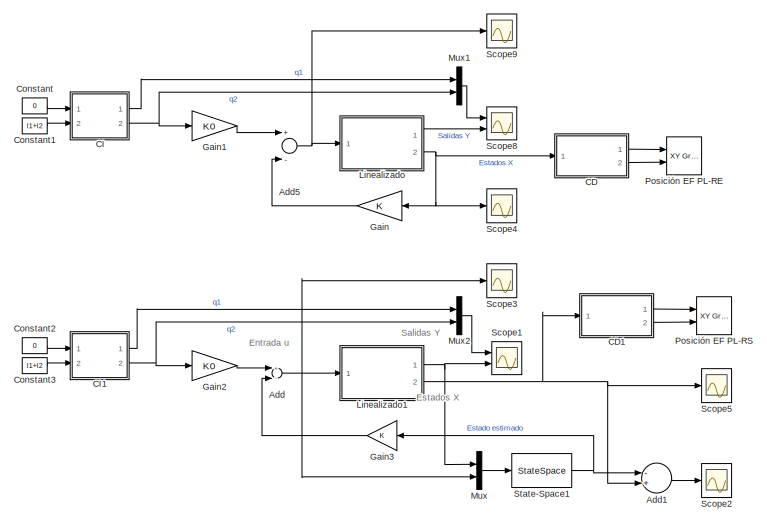
[diagram: root canvas - part 1/2, left side, full height]
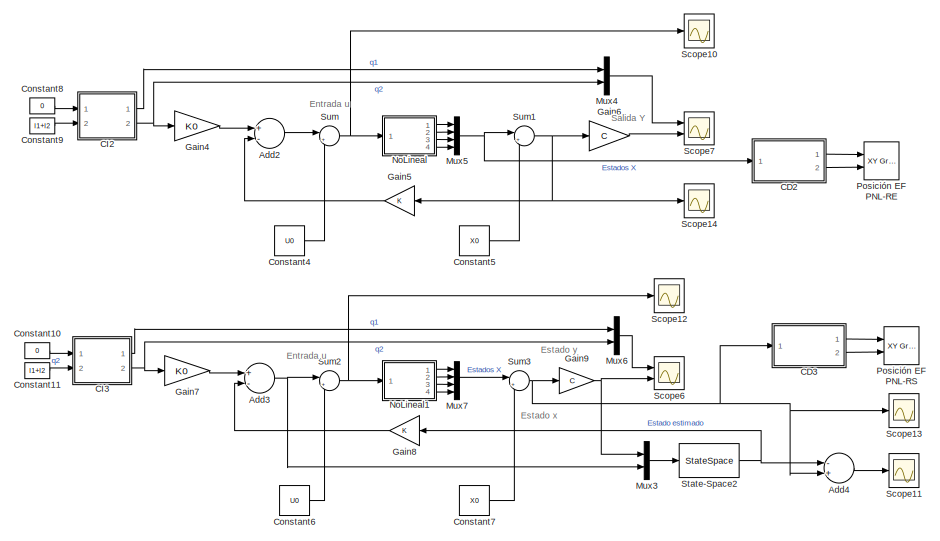
[diagram: root canvas - part 2/2, right side, full height]
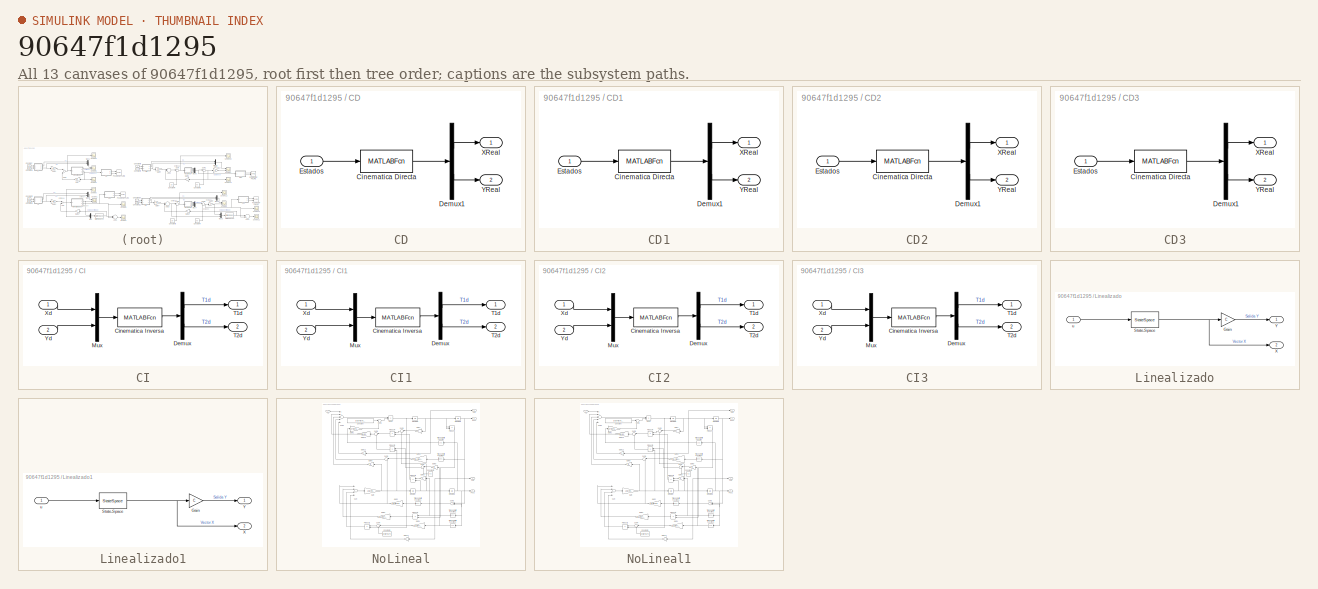
[diagram: thumbnail index - all 13 canvases of the model, root first then tree order]
MODEL slx_90647f1d1295
KIND model
CONFIG AbsTol = auto
CONFIG EnableMultiTasking = off
CONFIG FixedStep = 0.01
CONFIG MaxStep = auto
CONFIG MinStep = auto
CONFIG RelTol = 1e-3
CONFIG SampleTimeConstraint = Unconstrained
CONFIG Solver = ode4
CONFIG SolverName = ode4
CONFIG StartTime = 0.0
CONFIG StopTime = ts
BLOCK [Sum] Add
  InputSameDT = off
  Inputs = +-
  OutDataTypeStr = Inherit: Inherit via internal rule
  Ports = [2, 1]
  SaturateOnIntegerOverflow = off
BLOCK [Sum] Add1
  InputSameDT = off
  Inputs = -+
  OutDataTypeStr = Inherit: Inherit via internal rule
  Ports = [2, 1]
  SaturateOnIntegerOverflow = off
BLOCK [Sum] Add2
  InputSameDT = off
  Inputs = +-
  OutDataTypeStr = Inherit: Inherit via internal rule
  Ports = [2, 1]
  SaturateOnIntegerOverflow = off
BLOCK [Sum] Add3
  InputSameDT = off
  Inputs = +-
  OutDataTypeStr = Inherit: Inherit via internal rule
  Ports = [2, 1]
  SaturateOnIntegerOverflow = off
BLOCK [Sum] Add4
  InputSameDT = off
  Inputs = -+
  OutDataTypeStr = Inherit: Inherit via internal rule
  Ports = [2, 1]
  SaturateOnIntegerOverflow = off
BLOCK [Sum] Add5
  InputSameDT = off
  Inputs = +-
  OutDataTypeStr = Inherit: Inherit via internal rule
  Ports = [2, 1]
  SaturateOnIntegerOverflow = off
BLOCK [SubSystem] CD
  Ports = [1, 2]
  RequestExecContextInheritance = off
  TreatAsAtomicUnit = on
BLOCK [MATLABFcn] CD/Cinematica Directa
  MATLABFcn = CinematicaDirecta
  OutputDimensions = 2
  Ports = [1, 1]
BLOCK [Demux] CD/Demux1
  DisplayOption = bar
  Outputs = 2
  Ports = [1, 2]
BLOCK [Inport] CD/Estados
  IconDisplay = Port number
BLOCK [Outport] CD/XReal
  IconDisplay = Port number
  VectorParamsAs1DForOutWhenUnconnected = off
BLOCK [Outport] CD/YReal
  IconDisplay = Port number
  Port = 2
  VectorParamsAs1DForOutWhenUnconnected = off
BLOCK [SubSystem] CD1
  Ports = [1, 2]
  RequestExecContextInheritance = off
  TreatAsAtomicUnit = on
BLOCK [MATLABFcn] CD1/Cinematica Directa
  MATLABFcn = CinematicaDirecta
  OutputDimensions = 2
  Ports = [1, 1]
BLOCK [Demux] CD1/Demux1
  DisplayOption = bar
  Outputs = 2
  Ports = [1, 2]
BLOCK [Inport] CD1/Estados
  IconDisplay = Port number
BLOCK [Outport] CD1/XReal
  IconDisplay = Port number
  VectorParamsAs1DForOutWhenUnconnected = off
BLOCK [Outport] CD1/YReal
  IconDisplay = Port number
  Port = 2
  VectorParamsAs1DForOutWhenUnconnected = off
BLOCK [SubSystem] CD2
  Ports = [1, 2]
  RequestExecContextInheritance = off
  TreatAsAtomicUnit = on
BLOCK [MATLABFcn] CD2/Cinematica Directa
  MATLABFcn = CinematicaDirecta
  OutputDimensions = 2
  Ports = [1, 1]
BLOCK [Demux] CD2/Demux1
  DisplayOption = bar
  Outputs = 2
  Ports = [1, 2]
BLOCK [Inport] CD2/Estados
  IconDisplay = Port number
BLOCK [Outport] CD2/XReal
  IconDisplay = Port number
  VectorParamsAs1DForOutWhenUnconnected = off
BLOCK [Outport] CD2/YReal
  IconDisplay = Port number
  Port = 2
  VectorParamsAs1DForOutWhenUnconnected = off
BLOCK [SubSystem] CD3
  Ports = [1, 2]
  RequestExecContextInheritance = off
  TreatAsAtomicUnit = on
BLOCK [MATLABFcn] CD3/Cinematica Directa
  MATLABFcn = CinematicaDirecta
  OutputDimensions = 2
  Ports = [1, 1]
BLOCK [Demux] CD3/Demux1
  DisplayOption = bar
  Outputs = 2
  Ports = [1, 2]
BLOCK [Inport] CD3/Estados
  IconDisplay = Port number
BLOCK [Outport] CD3/XReal
  IconDisplay = Port number
  VectorParamsAs1DForOutWhenUnconnected = off
BLOCK [Outport] CD3/YReal
  IconDisplay = Port number
  Port = 2
  VectorParamsAs1DForOutWhenUnconnected = off
BLOCK [SubSystem] CI
  Ports = [2, 2]
  RequestExecContextInheritance = off
  TreatAsAtomicUnit = on
BLOCK [MATLABFcn] CI/Cinematica Inversa
  MATLABFcn = CinematicaInversa
  OutputDimensions = 2
  Ports = [1, 1]
BLOCK [Demux] CI/Demux
  DisplayOption = bar
  Outputs = 2
  Ports = [1, 2]
BLOCK [Mux] CI/Mux
  DisplayOption = bar
  Inputs = 2
  Ports = [2, 1]
BLOCK [Outport] CI/T1d
  IconDisplay = Port number
  VectorParamsAs1DForOutWhenUnconnected = off
BLOCK [Outport] CI/T2d
  IconDisplay = Port number
  Port = 2
  VectorParamsAs1DForOutWhenUnconnected = off
BLOCK [Inport] CI/Xd
  IconDisplay = Port number
BLOCK [Inport] CI/Yd
  IconDisplay = Port number
  Port = 2
BLOCK [SubSystem] CI1
  Ports = [2, 2]
  RequestExecContextInheritance = off
  TreatAsAtomicUnit = on
BLOCK [MATLABFcn] CI1/Cinematica Inversa
  MATLABFcn = CinematicaInversa
  OutputDimensions = 2
  Ports = [1, 1]
BLOCK [Demux] CI1/Demux
  DisplayOption = bar
  Outputs = 2
  Ports = [1, 2]
BLOCK [Mux] CI1/Mux
  DisplayOption = bar
  Inputs = 2
  Ports = [2, 1]
BLOCK [Outport] CI1/T1d
  IconDisplay = Port number
  VectorParamsAs1DForOutWhenUnconnected = off
BLOCK [Outport] CI1/T2d
  IconDisplay = Port number
  Port = 2
  VectorParamsAs1DForOutWhenUnconnected = off
BLOCK [Inport] CI1/Xd
  IconDisplay = Port number
BLOCK [Inport] CI1/Yd
  IconDisplay = Port number
  Port = 2
BLOCK [SubSystem] CI2
  Ports = [2, 2]
  RequestExecContextInheritance = off
  TreatAsAtomicUnit = on
BLOCK [MATLABFcn] CI2/Cinematica Inversa
  MATLABFcn = CinematicaInversa
  OutputDimensions = 2
  Ports = [1, 1]
BLOCK [Demux] CI2/Demux
  DisplayOption = bar
  Outputs = 2
  Ports = [1, 2]
BLOCK [Mux] CI2/Mux
  DisplayOption = bar
  Inputs = 2
  Ports = [2, 1]
BLOCK [Outport] CI2/T1d
  IconDisplay = Port number
  VectorParamsAs1DForOutWhenUnconnected = off
BLOCK [Outport] CI2/T2d
  IconDisplay = Port number
  Port = 2
  VectorParamsAs1DForOutWhenUnconnected = off
BLOCK [Inport] CI2/Xd
  IconDisplay = Port number
BLOCK [Inport] CI2/Yd
  IconDisplay = Port number
  Port = 2
BLOCK [SubSystem] CI3
  Ports = [2, 2]
  RequestExecContextInheritance = off
  TreatAsAtomicUnit = on
BLOCK [MATLABFcn] CI3/Cinematica Inversa
  MATLABFcn = CinematicaInversa
  OutputDimensions = 2
  Ports = [1, 1]
BLOCK [Demux] CI3/Demux
  DisplayOption = bar
  Outputs = 2
  Ports = [1, 2]
BLOCK [Mux] CI3/Mux
  DisplayOption = bar
  Inputs = 2
  Ports = [2, 1]
BLOCK [Outport] CI3/T1d
  IconDisplay = Port number
  VectorParamsAs1DForOutWhenUnconnected = off
BLOCK [Outport] CI3/T2d
  IconDisplay = Port number
  Port = 2
  VectorParamsAs1DForOutWhenUnconnected = off
BLOCK [Inport] CI3/Xd
  IconDisplay = Port number
BLOCK [Inport] CI3/Yd
  IconDisplay = Port number
  Port = 2
BLOCK [Constant] Constant
  Value = 0
BLOCK [Constant] Constant1
  Value = l1+l2
BLOCK [Constant] Constant10
  Value = 0
BLOCK [Constant] Constant11
  Value = l1+l2
BLOCK [Constant] Constant2
  Value = 0
BLOCK [Constant] Constant3
  Value = l1+l2
BLOCK [Constant] Constant4
  Value = U0
BLOCK [Constant] Constant5
  Value = X0
BLOCK [Constant] Constant6
  Value = U0
BLOCK [Constant] Constant7
  Value = X0
BLOCK [Constant] Constant8
  Value = 0
BLOCK [Constant] Constant9
  Value = l1+l2
BLOCK [Gain] Gain
  Gain = K
  Multiplication = Matrix(K*u)
  OutDataTypeStr = Inherit: Inherit via internal rule
  ParamDataTypeStr = Inherit: Inherit via internal rule
  SaturateOnIntegerOverflow = off
BLOCK [Gain] Gain1
  Gain = K0
  Multiplication = Matrix(K*u)
  OutDataTypeStr = Inherit: Inherit via internal rule
  ParamDataTypeStr = Inherit: Inherit via internal rule
  SaturateOnIntegerOverflow = off
BLOCK [Gain] Gain2
  Gain = K0
  Multiplication = Matrix(K*u)
  OutDataTypeStr = Inherit: Inherit via internal rule
  ParamDataTypeStr = Inherit: Inherit via internal rule
  SaturateOnIntegerOverflow = off
BLOCK [Gain] Gain3
  Gain = K
  Multiplication = Matrix(K*u)
  OutDataTypeStr = Inherit: Inherit via internal rule
  ParamDataTypeStr = Inherit: Inherit via internal rule
  SaturateOnIntegerOverflow = off
BLOCK [Gain] Gain4
  Gain = K0
  Multiplication = Matrix(K*u)
  OutDataTypeStr = Inherit: Inherit via internal rule
  ParamDataTypeStr = Inherit: Inherit via internal rule
  SaturateOnIntegerOverflow = off
BLOCK [Gain] Gain5
  Gain = K
  Multiplication = Matrix(K*u)
  OutDataTypeStr = Inherit: Inherit via internal rule
  ParamDataTypeStr = Inherit: Inherit via internal rule
  SaturateOnIntegerOverflow = off
BLOCK [Gain] Gain6
  Gain = C
  Multiplication = Matrix(K*u)
  OutDataTypeStr = Inherit: Inherit via internal rule
  ParamDataTypeStr = Inherit: Inherit via internal rule
  SaturateOnIntegerOverflow = off
BLOCK [Gain] Gain7
  Gain = K0
  Multiplication = Matrix(K*u)
  OutDataTypeStr = Inherit: Inherit via internal rule
  ParamDataTypeStr = Inherit: Inherit via internal rule
  SaturateOnIntegerOverflow = off
BLOCK [Gain] Gain8
  Gain = K
  Multiplication = Matrix(K*u)
  OutDataTypeStr = Inherit: Inherit via internal rule
  ParamDataTypeStr = Inherit: Inherit via internal rule
  SaturateOnIntegerOverflow = off
BLOCK [Gain] Gain9
  Gain = C
  Multiplication = Matrix(K*u)
  OutDataTypeStr = Inherit: Inherit via internal rule
  ParamDataTypeStr = Inherit: Inherit via internal rule
  SaturateOnIntegerOverflow = off
BLOCK [SubSystem] Linealizado
  Ports = [1, 2]
  RequestExecContextInheritance = off
BLOCK [Gain] Linealizado/Gain
  Gain = C
  Multiplication = Matrix(K*u)
  OutDataTypeStr = Inherit: Inherit via internal rule
  ParamDataTypeStr = Inherit: Inherit via internal rule
  SaturateOnIntegerOverflow = off
BLOCK [StateSpace] Linealizado/State-Space
  A = Al
  B = Bl
  C = eye(4)
  D = zeros(4,1)
  InitialCondition = XI
  Ports = [1, 1]
BLOCK [Outport] Linealizado/X
  IconDisplay = Port number
  Port = 2
BLOCK [Outport] Linealizado/Y
  IconDisplay = Port number
BLOCK [Inport] Linealizado/u
  IconDisplay = Port number
BLOCK [SubSystem] Linealizado1
  Ports = [1, 2]
  RequestExecContextInheritance = off
BLOCK [Gain] Linealizado1/Gain
  Gain = C
  Multiplication = Matrix(K*u)
  OutDataTypeStr = Inherit: Inherit via internal rule
  ParamDataTypeStr = Inherit: Inherit via internal rule
  SaturateOnIntegerOverflow = off
BLOCK [StateSpace] Linealizado1/State-Space
  A = Al
  B = Bl
  C = eye(4)
  D = zeros(4,1)
  InitialCondition = XI
  Ports = [1, 1]
BLOCK [Outport] Linealizado1/X
  IconDisplay = Port number
  Port = 2
BLOCK [Outport] Linealizado1/Y
  IconDisplay = Port number
BLOCK [Inport] Linealizado1/u
  IconDisplay = Port number
BLOCK [Mux] Mux
  DisplayOption = bar
  Inputs = 2
  Ports = [2, 1]
BLOCK [Mux] Mux1
  DisplayOption = bar
  Inputs = 2
  Ports = [2, 1]
BLOCK [Mux] Mux2
  DisplayOption = bar
  Inputs = 2
  Ports = [2, 1]
BLOCK [Mux] Mux3
  DisplayOption = bar
  Inputs = 2
  Ports = [2, 1]
BLOCK [Mux] Mux4
  DisplayOption = bar
  Inputs = 2
  Ports = [2, 1]
BLOCK [Mux] Mux5
  DisplayOption = bar
  Ports = [4, 1]
BLOCK [Mux] Mux6
  DisplayOption = bar
  Inputs = 2
  Ports = [2, 1]
BLOCK [Mux] Mux7
  DisplayOption = bar
  Ports = [4, 1]
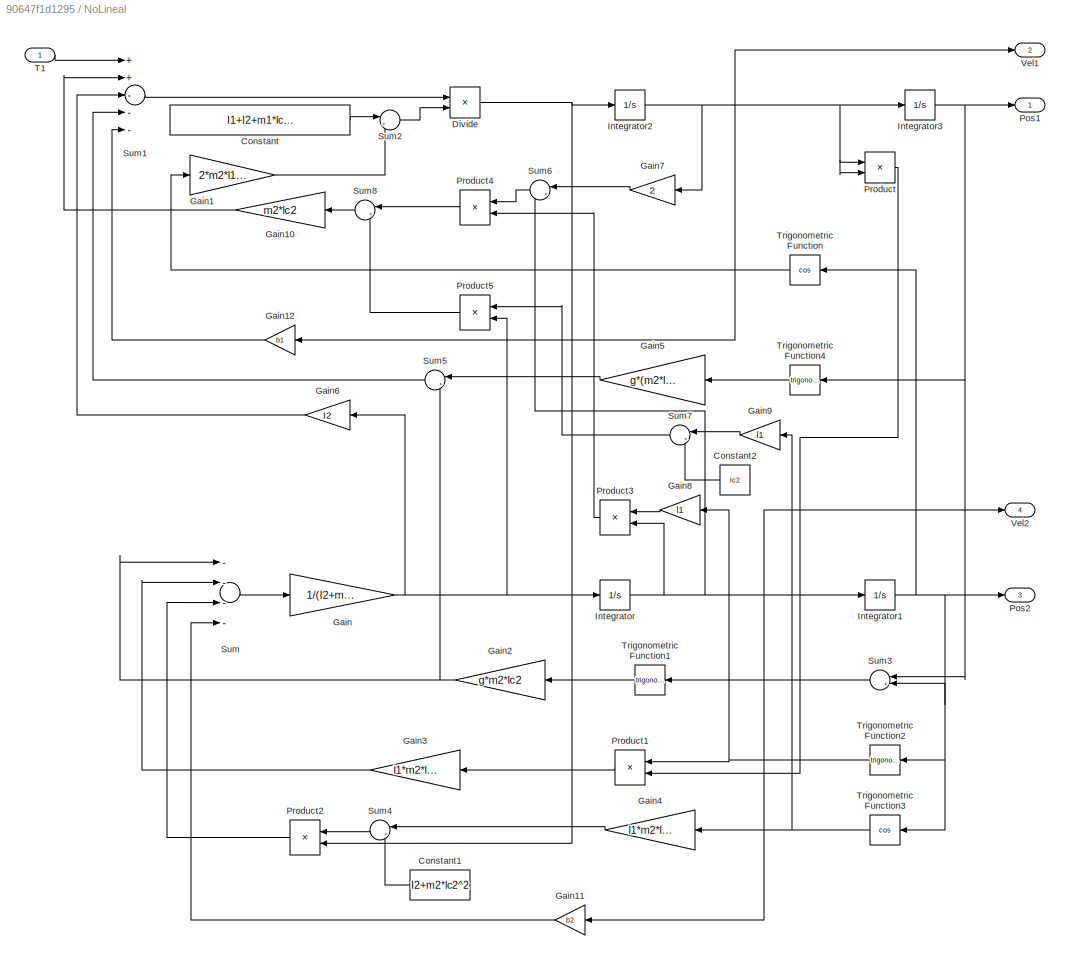
BLOCK [SubSystem] NoLineal
  Ports = [1, 4]
  RequestExecContextInheritance = off
BLOCK [Constant] NoLineal/Constant
  Value = I1+I2+m1*lc1^2+m2*(l1^2+lc2^2)
BLOCK [Constant] NoLineal/Constant1
  Value = I2+m2*lc2^2
BLOCK [Constant] NoLineal/Constant2
  Value = lc2
BLOCK [Product] NoLineal/Divide
  InputSameDT = off
  Inputs = */
  OutDataTypeStr = Inherit: Inherit via internal rule
  Ports = [2, 1]
  RndMeth = Floor
  SaturateOnIntegerOverflow = off
BLOCK [Gain] NoLineal/Gain
  Gain = 1/(I2+m2*lc2^2)
  OutDataTypeStr = Inherit: Inherit via internal rule
  ParamDataTypeStr = Inherit: Inherit via internal rule
  SaturateOnIntegerOverflow = off
BLOCK [Gain] NoLineal/Gain1
  Gain = 2*m2*l1*lc2
  OutDataTypeStr = Inherit: Inherit via internal rule
  ParamDataTypeStr = Inherit: Inherit via internal rule
  SaturateOnIntegerOverflow = off
BLOCK [Gain] NoLineal/Gain10
  Gain = m2*lc2
  OutDataTypeStr = Inherit: Inherit via internal rule
  ParamDataTypeStr = Inherit: Inherit via internal rule
  SaturateOnIntegerOverflow = off
BLOCK [Gain] NoLineal/Gain11
  Gain = b2
  OutDataTypeStr = Inherit: Inherit via internal rule
  ParamDataTypeStr = Inherit: Inherit via internal rule
  SaturateOnIntegerOverflow = off
BLOCK [Gain] NoLineal/Gain12
  Gain = b1
  OutDataTypeStr = Inherit: Inherit via internal rule
  ParamDataTypeStr = Inherit: Inherit via internal rule
  SaturateOnIntegerOverflow = off
BLOCK [Gain] NoLineal/Gain2
  Gain = g*m2*lc2
  OutDataTypeStr = Inherit: Inherit via internal rule
  ParamDataTypeStr = Inherit: Inherit via internal rule
  SaturateOnIntegerOverflow = off
BLOCK [Gain] NoLineal/Gain3
  Gain = l1*m2*lc2
  OutDataTypeStr = Inherit: Inherit via internal rule
  ParamDataTypeStr = Inherit: Inherit via internal rule
  SaturateOnIntegerOverflow = off
BLOCK [Gain] NoLineal/Gain4
  Gain = l1*m2*lc2
  OutDataTypeStr = Inherit: Inherit via internal rule
  ParamDataTypeStr = Inherit: Inherit via internal rule
  SaturateOnIntegerOverflow = off
BLOCK [Gain] NoLineal/Gain5
  Gain = g*(m2*l1+m1*lc1)
  OutDataTypeStr = Inherit: Inherit via internal rule
  ParamDataTypeStr = Inherit: Inherit via internal rule
  SaturateOnIntegerOverflow = off
BLOCK [Gain] NoLineal/Gain6
  Gain = I2
  OutDataTypeStr = Inherit: Inherit via internal rule
  ParamDataTypeStr = Inherit: Inherit via internal rule
  SaturateOnIntegerOverflow = off
BLOCK [Gain] NoLineal/Gain7
  Gain = 2
  OutDataTypeStr = Inherit: Inherit via internal rule
  ParamDataTypeStr = Inherit: Inherit via internal rule
  SaturateOnIntegerOverflow = off
BLOCK [Gain] NoLineal/Gain8
  Gain = l1
  OutDataTypeStr = Inherit: Inherit via internal rule
  ParamDataTypeStr = Inherit: Inherit via internal rule
  SaturateOnIntegerOverflow = off
BLOCK [Gain] NoLineal/Gain9
  Gain = l1
  OutDataTypeStr = Inherit: Inherit via internal rule
  ParamDataTypeStr = Inherit: Inherit via internal rule
  SaturateOnIntegerOverflow = off
BLOCK [Integrator] NoLineal/Integrator
  InitialCondition = XI(4)
  Ports = [1, 1]
BLOCK [Integrator] NoLineal/Integrator1
  InitialCondition = XI(3)
  Ports = [1, 1]
BLOCK [Integrator] NoLineal/Integrator2
  InitialCondition = XI(2)
  Ports = [1, 1]
BLOCK [Integrator] NoLineal/Integrator3
  InitialCondition = XI(1)
  Ports = [1, 1]
BLOCK [Outport] NoLineal/Pos1
  IconDisplay = Port number
  VectorParamsAs1DForOutWhenUnconnected = off
BLOCK [Outport] NoLineal/Pos2
  IconDisplay = Port number
  Port = 3
  VectorParamsAs1DForOutWhenUnconnected = off
BLOCK [Product] NoLineal/Product
  InputSameDT = off
  OutDataTypeStr = Inherit: Inherit via internal rule
  Ports = [2, 1]
  RndMeth = Floor
  SaturateOnIntegerOverflow = off
BLOCK [Product] NoLineal/Product1
  InputSameDT = off
  OutDataTypeStr = Inherit: Inherit via internal rule
  Ports = [2, 1]
  RndMeth = Floor
  SaturateOnIntegerOverflow = off
BLOCK [Product] NoLineal/Product2
  InputSameDT = off
  OutDataTypeStr = Inherit: Inherit via internal rule
  Ports = [2, 1]
  RndMeth = Floor
  SaturateOnIntegerOverflow = off
BLOCK [Product] NoLineal/Product3
  InputSameDT = off
  OutDataTypeStr = Inherit: Inherit via internal rule
  Ports = [2, 1]
  RndMeth = Floor
  SaturateOnIntegerOverflow = off
BLOCK [Product] NoLineal/Product4
  InputSameDT = off
  OutDataTypeStr = Inherit: Inherit via internal rule
  Ports = [2, 1]
  RndMeth = Floor
  SaturateOnIntegerOverflow = off
BLOCK [Product] NoLineal/Product5
  InputSameDT = off
  OutDataTypeStr = Inherit: Inherit via internal rule
  Ports = [2, 1]
  RndMeth = Floor
  SaturateOnIntegerOverflow = off
BLOCK [Sum] NoLineal/Sum
  InputSameDT = off
  Inputs = ----
  OutDataTypeStr = Inherit: Inherit via internal rule
  Ports = [4, 1]
  SaturateOnIntegerOverflow = off
BLOCK [Sum] NoLineal/Sum1
  InputSameDT = off
  Inputs = ++---
  OutDataTypeStr = Inherit: Inherit via internal rule
  Ports = [5, 1]
  SaturateOnIntegerOverflow = off
BLOCK [Sum] NoLineal/Sum2
  IconShape = round
  InputSameDT = off
  Inputs = |++
  OutDataTypeStr = Inherit: Inherit via internal rule
  Ports = [2, 1]
  SaturateOnIntegerOverflow = off
BLOCK [Sum] NoLineal/Sum3
  IconShape = round
  InputSameDT = off
  Inputs = |++
  OutDataTypeStr = Inherit: Inherit via internal rule
  Ports = [2, 1]
  SaturateOnIntegerOverflow = off
BLOCK [Sum] NoLineal/Sum4
  IconShape = round
  InputSameDT = off
  Inputs = |++
  OutDataTypeStr = Inherit: Inherit via internal rule
  Ports = [2, 1]
  SaturateOnIntegerOverflow = off
BLOCK [Sum] NoLineal/Sum5
  IconShape = round
  InputSameDT = off
  Inputs = |++
  OutDataTypeStr = Inherit: Inherit via internal rule
  Ports = [2, 1]
  SaturateOnIntegerOverflow = off
BLOCK [Sum] NoLineal/Sum6
  IconShape = round
  InputSameDT = off
  Inputs = |++
  OutDataTypeStr = Inherit: Inherit via internal rule
  Ports = [2, 1]
  SaturateOnIntegerOverflow = off
BLOCK [Sum] NoLineal/Sum7
  IconShape = round
  InputSameDT = off
  Inputs = |++
  OutDataTypeStr = Inherit: Inherit via internal rule
  Ports = [2, 1]
  SaturateOnIntegerOverflow = off
BLOCK [Sum] NoLineal/Sum8
  IconShape = round
  InputSameDT = off
  Inputs = |+-
  OutDataTypeStr = Inherit: Inherit via internal rule
  Ports = [2, 1]
  SaturateOnIntegerOverflow = off
BLOCK [Inport] NoLineal/T1
  IconDisplay = Port number
BLOCK [Trigonometry] NoLineal/Trigonometric Function
  Operator = cos
  Ports = [1, 1]
BLOCK [Trigonometry] NoLineal/Trigonometric Function1
  Ports = [1, 1]
BLOCK [Trigonometry] NoLineal/Trigonometric Function2
  Ports = [1, 1]
BLOCK [Trigonometry] NoLineal/Trigonometric Function3
  Operator = cos
  Ports = [1, 1]
BLOCK [Trigonometry] NoLineal/Trigonometric Function4
  Ports = [1, 1]
BLOCK [Outport] NoLineal/Vel1
  IconDisplay = Port number
  Port = 2
  VectorParamsAs1DForOutWhenUnconnected = off
BLOCK [Outport] NoLineal/Vel2
  IconDisplay = Port number
  Port = 4
  VectorParamsAs1DForOutWhenUnconnected = off
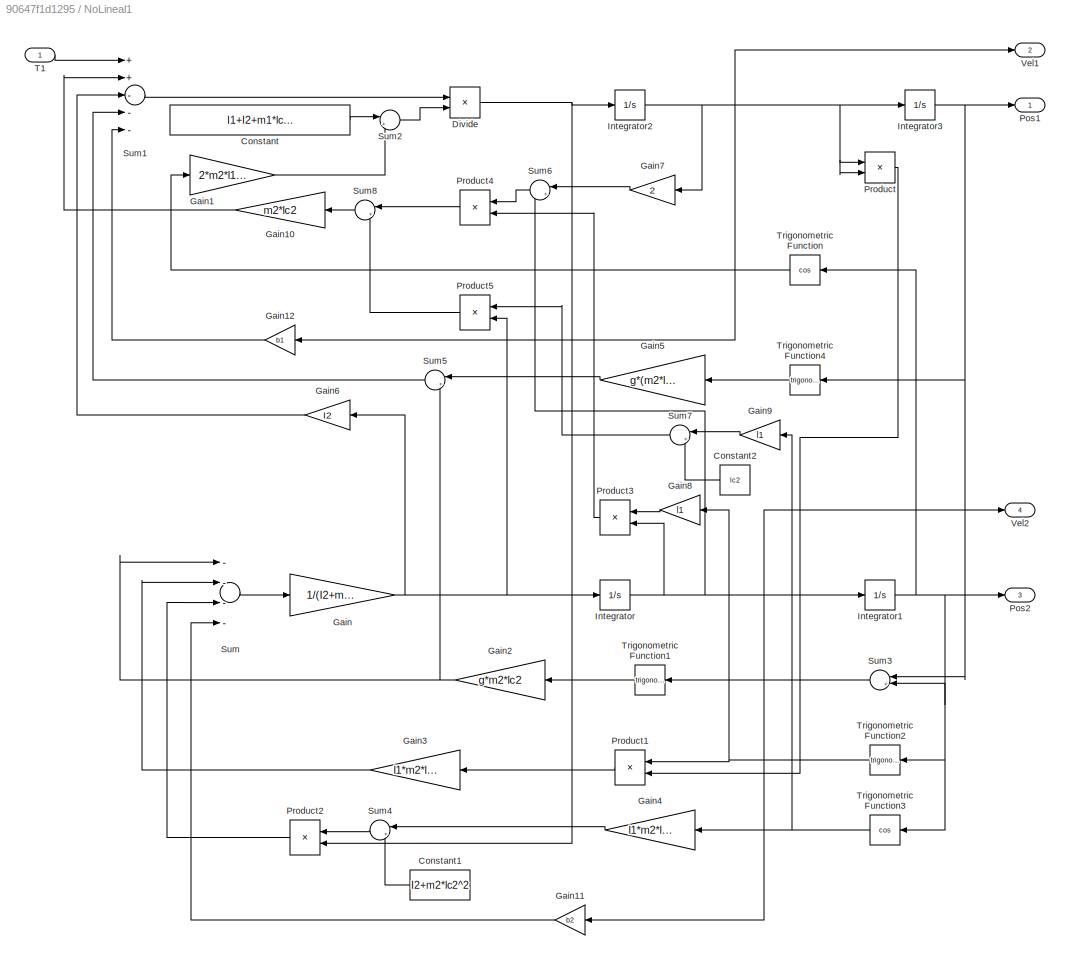
BLOCK [SubSystem] NoLineal1
  Ports = [1, 4]
  RequestExecContextInheritance = off
BLOCK [Constant] NoLineal1/Constant
  Value = I1+I2+m1*lc1^2+m2*(l1^2+lc2^2)
BLOCK [Constant] NoLineal1/Constant1
  Value = I2+m2*lc2^2
BLOCK [Constant] NoLineal1/Constant2
  Value = lc2
BLOCK [Product] NoLineal1/Divide
  InputSameDT = off
  Inputs = */
  OutDataTypeStr = Inherit: Inherit via internal rule
  Ports = [2, 1]
  RndMeth = Floor
  SaturateOnIntegerOverflow = off
BLOCK [Gain] NoLineal1/Gain
  Gain = 1/(I2+m2*lc2^2)
  OutDataTypeStr = Inherit: Inherit via internal rule
  ParamDataTypeStr = Inherit: Inherit via internal rule
  SaturateOnIntegerOverflow = off
BLOCK [Gain] NoLineal1/Gain1
  Gain = 2*m2*l1*lc2
  OutDataTypeStr = Inherit: Inherit via internal rule
  ParamDataTypeStr = Inherit: Inherit via internal rule
  SaturateOnIntegerOverflow = off
BLOCK [Gain] NoLineal1/Gain10
  Gain = m2*lc2
  OutDataTypeStr = Inherit: Inherit via internal rule
  ParamDataTypeStr = Inherit: Inherit via internal rule
  SaturateOnIntegerOverflow = off
BLOCK [Gain] NoLineal1/Gain11
  Gain = b2
  OutDataTypeStr = Inherit: Inherit via internal rule
  ParamDataTypeStr = Inherit: Inherit via internal rule
  SaturateOnIntegerOverflow = off
BLOCK [Gain] NoLineal1/Gain12
  Gain = b1
  OutDataTypeStr = Inherit: Inherit via internal rule
  ParamDataTypeStr = Inherit: Inherit via internal rule
  SaturateOnIntegerOverflow = off
BLOCK [Gain] NoLineal1/Gain2
  Gain = g*m2*lc2
  OutDataTypeStr = Inherit: Inherit via internal rule
  ParamDataTypeStr = Inherit: Inherit via internal rule
  SaturateOnIntegerOverflow = off
BLOCK [Gain] NoLineal1/Gain3
  Gain = l1*m2*lc2
  OutDataTypeStr = Inherit: Inherit via internal rule
  ParamDataTypeStr = Inherit: Inherit via internal rule
  SaturateOnIntegerOverflow = off
BLOCK [Gain] NoLineal1/Gain4
  Gain = l1*m2*lc2
  OutDataTypeStr = Inherit: Inherit via internal rule
  ParamDataTypeStr = Inherit: Inherit via internal rule
  SaturateOnIntegerOverflow = off
BLOCK [Gain] NoLineal1/Gain5
  Gain = g*(m2*l1+m1*lc1)
  OutDataTypeStr = Inherit: Inherit via internal rule
  ParamDataTypeStr = Inherit: Inherit via internal rule
  SaturateOnIntegerOverflow = off
BLOCK [Gain] NoLineal1/Gain6
  Gain = I2
  OutDataTypeStr = Inherit: Inherit via internal rule
  ParamDataTypeStr = Inherit: Inherit via internal rule
  SaturateOnIntegerOverflow = off
BLOCK [Gain] NoLineal1/Gain7
  Gain = 2
  OutDataTypeStr = Inherit: Inherit via internal rule
  ParamDataTypeStr = Inherit: Inherit via internal rule
  SaturateOnIntegerOverflow = off
BLOCK [Gain] NoLineal1/Gain8
  Gain = l1
  OutDataTypeStr = Inherit: Inherit via internal rule
  ParamDataTypeStr = Inherit: Inherit via internal rule
  SaturateOnIntegerOverflow = off
BLOCK [Gain] NoLineal1/Gain9
  Gain = l1
  OutDataTypeStr = Inherit: Inherit via internal rule
  ParamDataTypeStr = Inherit: Inherit via internal rule
  SaturateOnIntegerOverflow = off
BLOCK [Integrator] NoLineal1/Integrator
  InitialCondition = XI(4)
  Ports = [1, 1]
BLOCK [Integrator] NoLineal1/Integrator1
  InitialCondition = XI(3)
  Ports = [1, 1]
BLOCK [Integrator] NoLineal1/Integrator2
  InitialCondition = XI(2)
  Ports = [1, 1]
BLOCK [Integrator] NoLineal1/Integrator3
  InitialCondition = XI(1)
  Ports = [1, 1]
BLOCK [Outport] NoLineal1/Pos1
  IconDisplay = Port number
  VectorParamsAs1DForOutWhenUnconnected = off
BLOCK [Outport] NoLineal1/Pos2
  IconDisplay = Port number
  Port = 3
  VectorParamsAs1DForOutWhenUnconnected = off
BLOCK [Product] NoLineal1/Product
  InputSameDT = off
  OutDataTypeStr = Inherit: Inherit via internal rule
  Ports = [2, 1]
  RndMeth = Floor
  SaturateOnIntegerOverflow = off
BLOCK [Product] NoLineal1/Product1
  InputSameDT = off
  OutDataTypeStr = Inherit: Inherit via internal rule
  Ports = [2, 1]
  RndMeth = Floor
  SaturateOnIntegerOverflow = off
BLOCK [Product] NoLineal1/Product2
  InputSameDT = off
  OutDataTypeStr = Inherit: Inherit via internal rule
  Ports = [2, 1]
  RndMeth = Floor
  SaturateOnIntegerOverflow = off
BLOCK [Product] NoLineal1/Product3
  InputSameDT = off
  OutDataTypeStr = Inherit: Inherit via internal rule
  Ports = [2, 1]
  RndMeth = Floor
  SaturateOnIntegerOverflow = off
BLOCK [Product] NoLineal1/Product4
  InputSameDT = off
  OutDataTypeStr = Inherit: Inherit via internal rule
  Ports = [2, 1]
  RndMeth = Floor
  SaturateOnIntegerOverflow = off
BLOCK [Product] NoLineal1/Product5
  InputSameDT = off
  OutDataTypeStr = Inherit: Inherit via internal rule
  Ports = [2, 1]
  RndMeth = Floor
  SaturateOnIntegerOverflow = off
BLOCK [Sum] NoLineal1/Sum
  InputSameDT = off
  Inputs = ----
  OutDataTypeStr = Inherit: Inherit via internal rule
  Ports = [4, 1]
  SaturateOnIntegerOverflow = off
BLOCK [Sum] NoLineal1/Sum1
  InputSameDT = off
  Inputs = ++---
  OutDataTypeStr = Inherit: Inherit via internal rule
  Ports = [5, 1]
  SaturateOnIntegerOverflow = off
BLOCK [Sum] NoLineal1/Sum2
  IconShape = round
  InputSameDT = off
  Inputs = |++
  OutDataTypeStr = Inherit: Inherit via internal rule
  Ports = [2, 1]
  SaturateOnIntegerOverflow = off
BLOCK [Sum] NoLineal1/Sum3
  IconShape = round
  InputSameDT = off
  Inputs = |++
  OutDataTypeStr = Inherit: Inherit via internal rule
  Ports = [2, 1]
  SaturateOnIntegerOverflow = off
BLOCK [Sum] NoLineal1/Sum4
  IconShape = round
  InputSameDT = off
  Inputs = |++
  OutDataTypeStr = Inherit: Inherit via internal rule
  Ports = [2, 1]
  SaturateOnIntegerOverflow = off
BLOCK [Sum] NoLineal1/Sum5
  IconShape = round
  InputSameDT = off
  Inputs = |++
  OutDataTypeStr = Inherit: Inherit via internal rule
  Ports = [2, 1]
  SaturateOnIntegerOverflow = off
BLOCK [Sum] NoLineal1/Sum6
  IconShape = round
  InputSameDT = off
  Inputs = |++
  OutDataTypeStr = Inherit: Inherit via internal rule
  Ports = [2, 1]
  SaturateOnIntegerOverflow = off
BLOCK [Sum] NoLineal1/Sum7
  IconShape = round
  InputSameDT = off
  Inputs = |++
  OutDataTypeStr = Inherit: Inherit via internal rule
  Ports = [2, 1]
  SaturateOnIntegerOverflow = off
BLOCK [Sum] NoLineal1/Sum8
  IconShape = round
  InputSameDT = off
  Inputs = |+-
  OutDataTypeStr = Inherit: Inherit via internal rule
  Ports = [2, 1]
  SaturateOnIntegerOverflow = off
BLOCK [Inport] NoLineal1/T1
  IconDisplay = Port number
BLOCK [Trigonometry] NoLineal1/Trigonometric Function
  Operator = cos
  Ports = [1, 1]
BLOCK [Trigonometry] NoLineal1/Trigonometric Function1
  Ports = [1, 1]
BLOCK [Trigonometry] NoLineal1/Trigonometric Function2
  Ports = [1, 1]
BLOCK [Trigonometry] NoLineal1/Trigonometric Function3
  Operator = cos
  Ports = [1, 1]
BLOCK [Trigonometry] NoLineal1/Trigonometric Function4
  Ports = [1, 1]
BLOCK [Outport] NoLineal1/Vel1
  IconDisplay = Port number
  Port = 2
  VectorParamsAs1DForOutWhenUnconnected = off
BLOCK [Outport] NoLineal1/Vel2
  IconDisplay = Port number
  Port = 4
  VectorParamsAs1DForOutWhenUnconnected = off
BLOCK [Reference] Posición EF PL-RE  REF=simulink/Sinks/XY Graph
  Ports = [2]
  SourceBlock = simulink/Sinks/XY Graph
  SourceProductBaseCode = SL
  SourceProductName = Simulink
  SourceType = XY scope.
BLOCK [Reference] Posición EF PL-RS  REF=simulink/Sinks/XY Graph
  Ports = [2]
  SourceBlock = simulink/Sinks/XY Graph
  SourceProductBaseCode = SL
  SourceProductName = Simulink
  SourceType = XY scope.
BLOCK [Reference] Posición EF PNL-RE  REF=simulink/Sinks/XY Graph
  Ports = [2]
  SourceBlock = simulink/Sinks/XY Graph
  SourceProductBaseCode = SL
  SourceProductName = Simulink
  SourceType = XY scope.
BLOCK [Reference] Posición EF PNL-RS  REF=simulink/Sinks/XY Graph
  Ports = [2]
  SourceBlock = simulink/Sinks/XY Graph
  SourceProductBaseCode = SL
  SourceProductName = Simulink
  SourceType = XY scope.
BLOCK [Scope] Scope1
  Floating = off
  NumInputPorts = 2
  Ports = [2]
  ScopeSpecificationString = Simulink.scopes.TimeScopeBlockCfg('CurrentConfiguration', extmgr.ConfigurationSet(extmgr.Configuration('Core','General UI',true),extmgr.Configuration('Core','Source UI',true),extmgr.Configuration('Sources','WiredSimulink',true,'DataLoggingVariableName','ScopeData1'),extmgr.Configuration('Visuals','Time Domain',true,'SerializedDisplays',{struct('MinYLimReal','-0.04453','MaxYLimReal','0.40077','YLab...<+1488ch>
BLOCK [Scope] Scope10
  Floating = off
  NumInputPorts = 1
  Ports = [1]
  ScopeSpecificationString = Simulink.scopes.TimeScopeBlockCfg('CurrentConfiguration', extmgr.ConfigurationSet(extmgr.Configuration('Core','General UI',true,'FigureColor',[0 0 0]),extmgr.Configuration('Core','Source UI',true),extmgr.Configuration('Sources','WiredSimulink',true,'DataLoggingVariableName','ScopeData5'),extmgr.Configuration('Visuals','Time Domain',true,'SerializedDisplays',{struct('MinYLimReal','-15.41693','MaxYL...<+1682ch>
BLOCK [Scope] Scope11
  Floating = off
  NumInputPorts = 1
  Ports = [1]
  ScopeSpecificationString = Simulink.scopes.TimeScopeBlockCfg('CurrentConfiguration', extmgr.ConfigurationSet(extmgr.Configuration('Core','General UI',true,'FigureColor',[0 0 0]),extmgr.Configuration('Core','Source UI',true),extmgr.Configuration('Sources','WiredSimulink',true,'DataLoggingVariableName','ScopeData6'),extmgr.Configuration('Visuals','Time Domain',true,'SerializedDisplays',{struct('MinYLimReal','-0.95073','MaxYLi...<+1946ch>
BLOCK [Scope] Scope12
  Floating = off
  NumInputPorts = 1
  Ports = [1]
  ScopeSpecificationString = Simulink.scopes.TimeScopeBlockCfg('CurrentConfiguration', extmgr.ConfigurationSet(extmgr.Configuration('Core','General UI',true,'FigureColor',[0 0 0]),extmgr.Configuration('Core','Source UI',true),extmgr.Configuration('Sources','WiredSimulink',true,'DataLoggingVariableName','ScopeData7'),extmgr.Configuration('Visuals','Time Domain',true,'SerializedDisplays',{struct('MinYLimReal','-674.49278','MaxY...<+1695ch>
BLOCK [Scope] Scope13
  Floating = off
  NumInputPorts = 1
  Ports = [1]
  ScopeSpecificationString = Simulink.scopes.TimeScopeBlockCfg('CurrentConfiguration', extmgr.ConfigurationSet(extmgr.Configuration('Core','General UI',true,'FigureColor',[0 0 0]),extmgr.Configuration('Core','Source UI',true),extmgr.Configuration('Sources','WiredSimulink',true,'DataLoggingVariableName','ScopeData8'),extmgr.Configuration('Visuals','Time Domain',true,'SerializedDisplays',{struct('MinYLimReal','-90.87837','MaxYL...<+1956ch>
BLOCK [Scope] Scope14
  Floating = off
  NumInputPorts = 1
  Ports = [1]
  ScopeSpecificationString = Simulink.scopes.TimeScopeBlockCfg('CurrentConfiguration', extmgr.ConfigurationSet(extmgr.Configuration('Core','General UI',true,'FigureColor',[0 0 0]),extmgr.Configuration('Core','Source UI',true),extmgr.Configuration('Sources','WiredSimulink',true,'DataLoggingVariableName','ScopeData9'),extmgr.Configuration('Visuals','Time Domain',true,'SerializedDisplays',{struct('MinYLimReal','-0.01132','MaxYLi...<+1955ch>
BLOCK [Scope] Scope2
  Floating = off
  NumInputPorts = 1
  Ports = [1]
  ScopeSpecificationString = Simulink.scopes.TimeScopeBlockCfg('CurrentConfiguration', extmgr.ConfigurationSet(extmgr.Configuration('Core','General UI',true),extmgr.Configuration('Core','Source UI',true),extmgr.Configuration('Sources','WiredSimulink',true,'DataLoggingVariableName','ScopeData2'),extmgr.Configuration('Visuals','Time Domain',true,'SerializedDisplays',{struct('MinYLimReal','-0.00000000000011','MaxYLimReal','0.000...<+1562ch>
BLOCK [Scope] Scope3
  Floating = off
  NumInputPorts = 1
  Ports = [1]
  ScopeSpecificationString = Simulink.scopes.TimeScopeBlockCfg('CurrentConfiguration', extmgr.ConfigurationSet(extmgr.Configuration('Core','General UI',true),extmgr.Configuration('Core','Source UI',true),extmgr.Configuration('Sources','WiredSimulink',true,'DataLoggingVariableName','ScopeData3'),extmgr.Configuration('Visuals','Time Domain',true,'SerializedDisplays',{struct('MinYLimReal','-322.66148','MaxYLimReal','1045.40486',...<+1478ch>
BLOCK [Scope] Scope4
  Floating = off
  NumInputPorts = 1
  Ports = [1]
  ScopeSpecificationString = Simulink.scopes.TimeScopeBlockCfg('CurrentConfiguration', extmgr.ConfigurationSet(extmgr.Configuration('Core','General UI',true),extmgr.Configuration('Core','Source UI',true),extmgr.Configuration('Sources','WiredSimulink',true,'DataLoggingVariableName','ScopeData5'),extmgr.Configuration('Visuals','Time Domain',true,'SerializedDisplays',{struct('MinYLimReal','-28.68583','MaxYLimReal','11.36005','YL...<+1514ch>
BLOCK [Scope] Scope5
  Floating = off
  NumInputPorts = 1
  Ports = [1]
  ScopeSpecificationString = Simulink.scopes.TimeScopeBlockCfg('CurrentConfiguration', extmgr.ConfigurationSet(extmgr.Configuration('Core','General UI',true),extmgr.Configuration('Core','Source UI',true),extmgr.Configuration('Sources','WiredSimulink',true,'DataLoggingVariableName','ScopeData4'),extmgr.Configuration('Visuals','Time Domain',true,'SerializedDisplays',{struct('MinYLimReal','-1.94358','MaxYLimReal','2.62557','YLab...<+1558ch>
BLOCK [Scope] Scope6
  Floating = off
  NumInputPorts = 2
  Ports = [2]
  ScopeSpecificationString = Simulink.scopes.TimeScopeBlockCfg('CurrentConfiguration', extmgr.ConfigurationSet(extmgr.Configuration('Core','General UI',true,'FigureColor',[0 0 0]),extmgr.Configuration('Core','Source UI',true),extmgr.Configuration('Sources','WiredSimulink',true,'DataLoggingVariableName','ScopeData10'),extmgr.Configuration('Visuals','Time Domain',true,'SerializedDisplays',{struct('MinYLimReal','-0.44537','MaxYL...<+1822ch>
BLOCK [Scope] Scope7
  Floating = off
  NumInputPorts = 2
  Ports = [2]
  ScopeSpecificationString = Simulink.scopes.TimeScopeBlockCfg('CurrentConfiguration', extmgr.ConfigurationSet(extmgr.Configuration('Core','General UI',true,'FigureColor',[0 0 0]),extmgr.Configuration('Core','Source UI',true),extmgr.Configuration('Sources','WiredSimulink',true,'DataLoggingVariableName','ScopeData11'),extmgr.Configuration('Visuals','Time Domain',true,'SerializedDisplays',{struct('MinYLimReal','-0.00069','MaxYL...<+1824ch>
BLOCK [Scope] Scope8
  Floating = off
  NumInputPorts = 2
  Ports = [2]
  ScopeSpecificationString = Simulink.scopes.TimeScopeBlockCfg('CurrentConfiguration', extmgr.ConfigurationSet(extmgr.Configuration('Core','General UI',true),extmgr.Configuration('Core','Source UI',true),extmgr.Configuration('Sources','WiredSimulink',true,'DataLoggingVariableName','ScopeData4'),extmgr.Configuration('Visuals','Time Domain',true,'SerializedDisplays',{struct('MinYLimReal','-0.04977','MaxYLimReal','0.44477','YLab...<+1542ch>
BLOCK [Scope] Scope9
  Floating = off
  NumInputPorts = 1
  Ports = [1]
  ScopeSpecificationString = Simulink.scopes.TimeScopeBlockCfg('CurrentConfiguration', extmgr.ConfigurationSet(extmgr.Configuration('Core','General UI',true),extmgr.Configuration('Core','Source UI',true),extmgr.Configuration('Sources','WiredSimulink',true),extmgr.Configuration('Visuals','Time Domain',true,'SerializedDisplays',{struct('MinYLimReal','-36.36599','MaxYLimReal','7.36609','YLabelReal','','MinYLimMag','0.00000','Max...<+1426ch>
BLOCK [StateSpace] State-Space1
  A = Al-L*C
  B = [L,Bl]
  C = eye(4)
  D = zeros(4,2)
  InitialCondition = XI
  Ports = [1, 1]
BLOCK [StateSpace] State-Space2
  A = Al-L*C
  B = [L,Bl]
  C = eye(4)
  D = zeros(4,2)
  InitialCondition = XI
  Ports = [1, 1]
BLOCK [Sum] Sum
  IconShape = round
  InputSameDT = off
  Inputs = |++
  OutDataTypeStr = Inherit: Inherit via internal rule
  Ports = [2, 1]
  SaturateOnIntegerOverflow = off
BLOCK [Sum] Sum1
  IconShape = round
  InputSameDT = off
  Inputs = |+-
  OutDataTypeStr = Inherit: Inherit via internal rule
  Ports = [2, 1]
  SaturateOnIntegerOverflow = off
BLOCK [Sum] Sum2
  IconShape = round
  InputSameDT = off
  Inputs = |++
  OutDataTypeStr = Inherit: Inherit via internal rule
  Ports = [2, 1]
  SaturateOnIntegerOverflow = off
BLOCK [Sum] Sum3
  IconShape = round
  InputSameDT = off
  Inputs = |+-
  OutDataTypeStr = Inherit: Inherit via internal rule
  Ports = [2, 1]
  SaturateOnIntegerOverflow = off
ANNOTATION (root): Entrada u
ANNOTATION (root): Estado x
ANNOTATION (root): Estado y
ANNOTATION (root): Estados X
ANNOTATION (root): Salida Y
ANNOTATION (root): Salidas Y
LINE Add1:1 -> Scope2:1
LINE Add2:1 -> Sum:1
NET Add3:1 -> Mux3:2, Sum2:1
LINE Add4:1 -> Scope11:1
NET Add5:1 -> Linealizado:1, Scope9:1
NET Add:1 -> Linealizado1:1, Mux:2, Scope3:1
LINE CD/Cinematica Directa:1 -> CD/Demux1:1
LINE CD/Demux1:1 -> CD/XReal:1
LINE CD/Demux1:2 -> CD/YReal:1
LINE CD/Estados:1 -> CD/Cinematica Directa:1
LINE CD1/Cinematica Directa:1 -> CD1/Demux1:1
LINE CD1/Demux1:1 -> CD1/XReal:1
LINE CD1/Demux1:2 -> CD1/YReal:1
LINE CD1/Estados:1 -> CD1/Cinematica Directa:1
LINE CD1:1 -> Posición EF PL-RS:1
LINE CD1:2 -> Posición EF PL-RS:2
LINE CD2/Cinematica Directa:1 -> CD2/Demux1:1
LINE CD2/Demux1:1 -> CD2/XReal:1
LINE CD2/Demux1:2 -> CD2/YReal:1
LINE CD2/Estados:1 -> CD2/Cinematica Directa:1
LINE CD2:1 -> Posición EF PNL-RE:1
LINE CD2:2 -> Posición EF PNL-RE:2
LINE CD3/Cinematica Directa:1 -> CD3/Demux1:1
LINE CD3/Demux1:1 -> CD3/XReal:1
LINE CD3/Demux1:2 -> CD3/YReal:1
LINE CD3/Estados:1 -> CD3/Cinematica Directa:1
LINE CD3:1 -> Posición EF PNL-RS:1
LINE CD3:2 -> Posición EF PNL-RS:2
LINE CD:1 -> Posición EF PL-RE:1
LINE CD:2 -> Posición EF PL-RE:2
LINE CI/Cinematica Inversa:1 -> CI/Demux:1
LINE CI/Demux:1 -> CI/T1d:1
LINE CI/Demux:2 -> CI/T2d:1
LINE CI/Mux:1 -> CI/Cinematica Inversa:1
LINE CI/Xd:1 -> CI/Mux:1
LINE CI/Yd:1 -> CI/Mux:2
LINE CI1/Cinematica Inversa:1 -> CI1/Demux:1
LINE CI1/Demux:1 -> CI1/T1d:1
LINE CI1/Demux:2 -> CI1/T2d:1
LINE CI1/Mux:1 -> CI1/Cinematica Inversa:1
LINE CI1/Xd:1 -> CI1/Mux:1
LINE CI1/Yd:1 -> CI1/Mux:2
LINE CI1:1 -> Mux2:1
NET CI1:2 -> Gain2:1, Mux2:2
LINE CI2/Cinematica Inversa:1 -> CI2/Demux:1
LINE CI2/Demux:1 -> CI2/T1d:1
LINE CI2/Demux:2 -> CI2/T2d:1
LINE CI2/Mux:1 -> CI2/Cinematica Inversa:1
LINE CI2/Xd:1 -> CI2/Mux:1
LINE CI2/Yd:1 -> CI2/Mux:2
LINE CI2:1 -> Mux4:1
NET CI2:2 -> Gain4:1, Mux4:2
LINE CI3/Cinematica Inversa:1 -> CI3/Demux:1
LINE CI3/Demux:1 -> CI3/T1d:1
LINE CI3/Demux:2 -> CI3/T2d:1
LINE CI3/Mux:1 -> CI3/Cinematica Inversa:1
LINE CI3/Xd:1 -> CI3/Mux:1
LINE CI3/Yd:1 -> CI3/Mux:2
LINE CI3:1 -> Mux6:1
NET CI3:2 -> Gain7:1, Mux6:2
LINE CI:1 -> Mux1:1
NET CI:2 -> Gain1:1, Mux1:2
LINE Constant10:1 -> CI3:1
LINE Constant11:1 -> CI3:2
LINE Constant1:1 -> CI:2
LINE Constant2:1 -> CI1:1
LINE Constant3:1 -> CI1:2
LINE Constant4:1 -> Sum:2
LINE Constant5:1 -> Sum1:2
LINE Constant6:1 -> Sum2:2
LINE Constant7:1 -> Sum3:2
LINE Constant8:1 -> CI2:1
LINE Constant9:1 -> CI2:2
LINE Constant:1 -> CI:1
LINE Gain1:1 -> Add5:1
LINE Gain2:1 -> Add:1
LINE Gain3:1 -> Add:2
LINE Gain4:1 -> Add2:1
LINE Gain5:1 -> Add2:2
LINE Gain6:1 -> Scope7:2
LINE Gain7:1 -> Add3:1
LINE Gain8:1 -> Add3:2
NET Gain9:1 -> Mux3:1, Scope6:2
LINE Gain:1 -> Add5:2
LINE Linealizado/Gain:1 -> Linealizado/Y:1
NET Linealizado/State-Space:1 -> Linealizado/Gain:1, Linealizado/X:1
LINE Linealizado/u:1 -> Linealizado/State-Space:1
LINE Linealizado1/Gain:1 -> Linealizado1/Y:1
NET Linealizado1/State-Space:1 -> Linealizado1/Gain:1, Linealizado1/X:1
LINE Linealizado1/u:1 -> Linealizado1/State-Space:1
NET Linealizado1:1 -> Mux:1, Scope1:2
NET Linealizado1:2 -> Add1:2, CD1:1, Scope5:1
LINE Linealizado:1 -> Scope8:2
NET Linealizado:2 -> CD:1, Gain:1, Scope4:1
LINE Mux1:1 -> Scope8:1
LINE Mux2:1 -> Scope1:1
LINE Mux3:1 -> State-Space2:1
LINE Mux4:1 -> Scope7:1
NET Mux5:1 -> CD2:1, Sum1:1
LINE Mux6:1 -> Scope6:1
LINE Mux7:1 -> Sum3:1
LINE Mux:1 -> State-Space1:1
LINE NoLineal/Constant1:1 -> NoLineal/Sum4:2
LINE NoLineal/Constant2:1 -> NoLineal/Sum7:2
LINE NoLineal/Constant:1 -> NoLineal/Sum2:1
NET NoLineal/Divide:1 -> NoLineal/Integrator2:1, NoLineal/Product2:2
LINE NoLineal/Gain10:1 -> NoLineal/Sum1:2
LINE NoLineal/Gain11:1 -> NoLineal/Sum:4
LINE NoLineal/Gain12:1 -> NoLineal/Sum1:5
LINE NoLineal/Gain1:1 -> NoLineal/Sum2:2
NET NoLineal/Gain2:1 -> NoLineal/Sum5:2, NoLineal/Sum:1
LINE NoLineal/Gain3:1 -> NoLineal/Sum:2
LINE NoLineal/Gain4:1 -> NoLineal/Sum4:1
LINE NoLineal/Gain5:1 -> NoLineal/Sum5:1
LINE NoLineal/Gain6:1 -> NoLineal/Sum1:3
LINE NoLineal/Gain7:1 -> NoLineal/Sum6:1
LINE NoLineal/Gain8:1 -> NoLineal/Product3:1
LINE NoLineal/Gain9:1 -> NoLineal/Sum7:1
NET NoLineal/Gain:1 -> NoLineal/Gain6:1, NoLineal/Integrator:1, NoLineal/Product5:2
NET NoLineal/Integrator1:1 -> NoLineal/Pos2:1, NoLineal/Sum3:2, NoLineal/Trigonometric Function2:1, NoLineal/Trigonometric Function3:1, NoLineal/Trigonometric Function:1
NET NoLineal/Integrator2:1 -> NoLineal/Gain12:1, NoLineal/Gain7:1, NoLineal/Integrator3:1, NoLineal/Product:1, NoLineal/Product:2, NoLineal/Vel1:1
NET NoLineal/Integrator3:1 -> NoLineal/Pos1:1, NoLineal/Sum3:1, NoLineal/Trigonometric Function4:1
NET NoLineal/Integrator:1 -> NoLineal/Gain11:1, NoLineal/Integrator1:1, NoLineal/Product3:2, NoLineal/Sum6:2, NoLineal/Vel2:1
LINE NoLineal/Product1:1 -> NoLineal/Gain3:1
LINE NoLineal/Product2:1 -> NoLineal/Sum:3
LINE NoLineal/Product3:1 -> NoLineal/Product4:2
LINE NoLineal/Product4:1 -> NoLineal/Sum8:1
LINE NoLineal/Product5:1 -> NoLineal/Sum8:2
LINE NoLineal/Product:1 -> NoLineal/Product1:2
LINE NoLineal/Sum1:1 -> NoLineal/Divide:1
LINE NoLineal/Sum2:1 -> NoLineal/Divide:2
LINE NoLineal/Sum3:1 -> NoLineal/Trigonometric Function1:1
LINE NoLineal/Sum4:1 -> NoLineal/Product2:1
LINE NoLineal/Sum5:1 -> NoLineal/Sum1:4
LINE NoLineal/Sum6:1 -> NoLineal/Product4:1
LINE NoLineal/Sum7:1 -> NoLineal/Product5:1
LINE NoLineal/Sum8:1 -> NoLineal/Gain10:1
LINE NoLineal/Sum:1 -> NoLineal/Gain:1
LINE NoLineal/T1:1 -> NoLineal/Sum1:1
LINE NoLineal/Trigonometric Function1:1 -> NoLineal/Gain2:1
NET NoLineal/Trigonometric Function2:1 -> NoLineal/Gain8:1, NoLineal/Product1:1
NET NoLineal/Trigonometric Function3:1 -> NoLineal/Gain4:1, NoLineal/Gain9:1
LINE NoLineal/Trigonometric Function4:1 -> NoLineal/Gain5:1
LINE NoLineal/Trigonometric Function:1 -> NoLineal/Gain1:1
LINE NoLineal1/Constant1:1 -> NoLineal1/Sum4:2
LINE NoLineal1/Constant2:1 -> NoLineal1/Sum7:2
LINE NoLineal1/Constant:1 -> NoLineal1/Sum2:1
NET NoLineal1/Divide:1 -> NoLineal1/Integrator2:1, NoLineal1/Product2:2
LINE NoLineal1/Gain10:1 -> NoLineal1/Sum1:2
LINE NoLineal1/Gain11:1 -> NoLineal1/Sum:4
LINE NoLineal1/Gain12:1 -> NoLineal1/Sum1:5
LINE NoLineal1/Gain1:1 -> NoLineal1/Sum2:2
NET NoLineal1/Gain2:1 -> NoLineal1/Sum5:2, NoLineal1/Sum:1
LINE NoLineal1/Gain3:1 -> NoLineal1/Sum:2
LINE NoLineal1/Gain4:1 -> NoLineal1/Sum4:1
LINE NoLineal1/Gain5:1 -> NoLineal1/Sum5:1
LINE NoLineal1/Gain6:1 -> NoLineal1/Sum1:3
LINE NoLineal1/Gain7:1 -> NoLineal1/Sum6:1
LINE NoLineal1/Gain8:1 -> NoLineal1/Product3:1
LINE NoLineal1/Gain9:1 -> NoLineal1/Sum7:1
NET NoLineal1/Gain:1 -> NoLineal1/Gain6:1, NoLineal1/Integrator:1, NoLineal1/Product5:2
NET NoLineal1/Integrator1:1 -> NoLineal1/Pos2:1, NoLineal1/Sum3:2, NoLineal1/Trigonometric Function2:1, NoLineal1/Trigonometric Function3:1, NoLineal1/Trigonometric Function:1
NET NoLineal1/Integrator2:1 -> NoLineal1/Gain12:1, NoLineal1/Gain7:1, NoLineal1/Integrator3:1, NoLineal1/Product:1, NoLineal1/Product:2, NoLineal1/Vel1:1
NET NoLineal1/Integrator3:1 -> NoLineal1/Pos1:1, NoLineal1/Sum3:1, NoLineal1/Trigonometric Function4:1
NET NoLineal1/Integrator:1 -> NoLineal1/Gain11:1, NoLineal1/Integrator1:1, NoLineal1/Product3:2, NoLineal1/Sum6:2, NoLineal1/Vel2:1
LINE NoLineal1/Product1:1 -> NoLineal1/Gain3:1
LINE NoLineal1/Product2:1 -> NoLineal1/Sum:3
LINE NoLineal1/Product3:1 -> NoLineal1/Product4:2
LINE NoLineal1/Product4:1 -> NoLineal1/Sum8:1
LINE NoLineal1/Product5:1 -> NoLineal1/Sum8:2
LINE NoLineal1/Product:1 -> NoLineal1/Product1:2
LINE NoLineal1/Sum1:1 -> NoLineal1/Divide:1
LINE NoLineal1/Sum2:1 -> NoLineal1/Divide:2
LINE NoLineal1/Sum3:1 -> NoLineal1/Trigonometric Function1:1
LINE NoLineal1/Sum4:1 -> NoLineal1/Product2:1
LINE NoLineal1/Sum5:1 -> NoLineal1/Sum1:4
LINE NoLineal1/Sum6:1 -> NoLineal1/Product4:1
LINE NoLineal1/Sum7:1 -> NoLineal1/Product5:1
LINE NoLineal1/Sum8:1 -> NoLineal1/Gain10:1
LINE NoLineal1/Sum:1 -> NoLineal1/Gain:1
LINE NoLineal1/T1:1 -> NoLineal1/Sum1:1
LINE NoLineal1/Trigonometric Function1:1 -> NoLineal1/Gain2:1
NET NoLineal1/Trigonometric Function2:1 -> NoLineal1/Gain8:1, NoLineal1/Product1:1
NET NoLineal1/Trigonometric Function3:1 -> NoLineal1/Gain4:1, NoLineal1/Gain9:1
LINE NoLineal1/Trigonometric Function4:1 -> NoLineal1/Gain5:1
LINE NoLineal1/Trigonometric Function:1 -> NoLineal1/Gain1:1
LINE NoLineal1:1 -> Mux7:1
LINE NoLineal1:2 -> Mux7:2
LINE NoLineal1:3 -> Mux7:3
LINE NoLineal1:4 -> Mux7:4
LINE NoLineal:1 -> Mux5:1
LINE NoLineal:2 -> Mux5:2
LINE NoLineal:3 -> Mux5:3
LINE NoLineal:4 -> Mux5:4
NET State-Space1:1 -> Add1:1, Gain3:1
NET State-Space2:1 -> Add4:1, Gain8:1
NET Sum1:1 -> Gain5:1, Gain6:1, Scope14:1
NET Sum2:1 -> NoLineal1:1, Scope12:1
NET Sum3:1 -> Add4:2, CD3:1, Gain9:1, Scope13:1
NET Sum:1 -> NoLineal:1, Scope10:1
note: NET lines group one-source signal fan-out (src -> all destinations, sorted); 1:1 wires keep LINE
